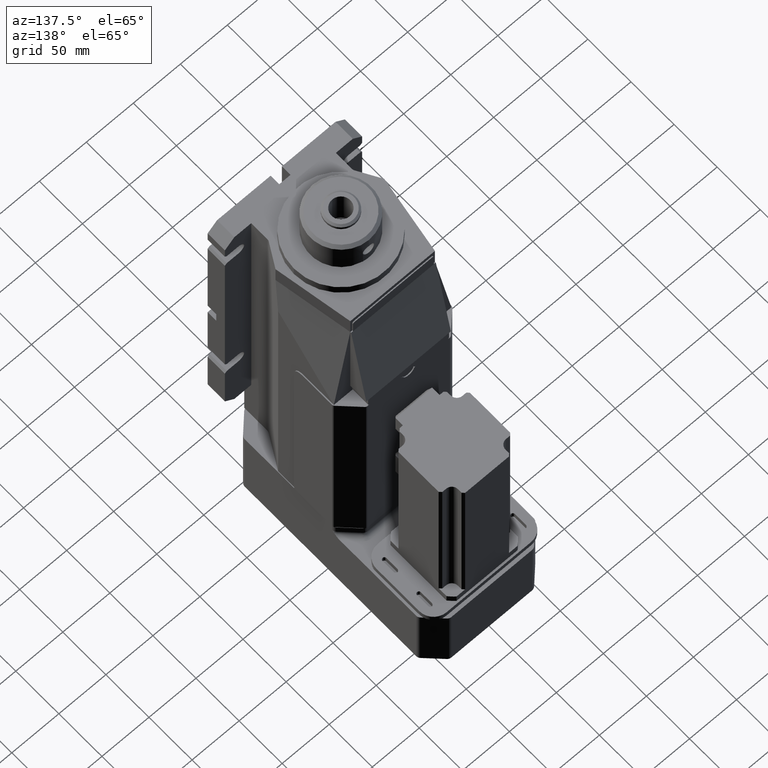
[diagram: clean part render]
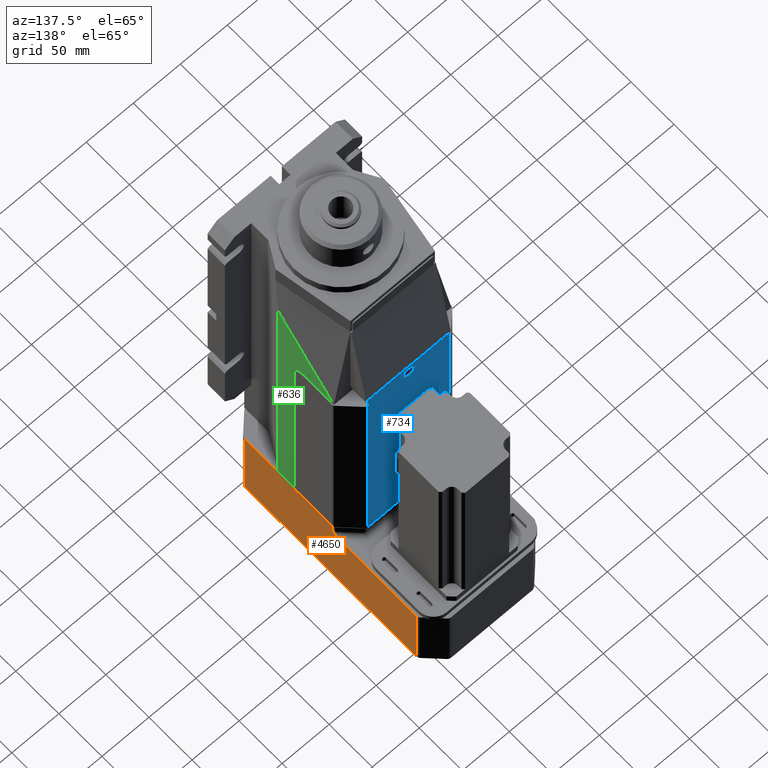
[diagram: same view with three faces highlighted in distinct colors, each labeled with its STEP entity id]
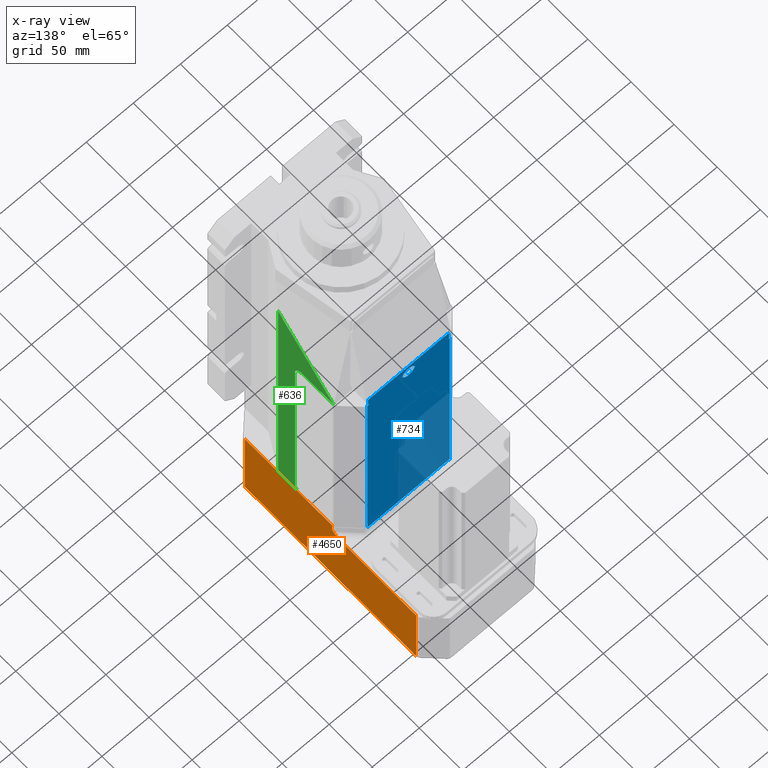
[diagram: x-ray of the same camera — body ghosted, the three highlighted faces saturated]
A machine part, auxiliary view with three faces highlighted in distinct colors.
The next image is the same camera in x-ray (body ghosted, the three faces saturated) — at least one of them is partly hidden behind the body in this view.
Their STEP definitions:

[orange] entity #4650 — the highlighted planar face has unit normal (1, 0, 0).
#1224 = VERTEX_POINT ( 'NONE', #8381 ) ;
#1226 = EDGE_CURVE ( 'NONE', #1227, #1224, #8380, .T. ) ;
#1227 = VERTEX_POINT ( 'NONE', #8376 ) ;
#4376 = VERTEX_POINT ( 'NONE', #8450 ) ;
#4378 = EDGE_CURVE ( 'NONE', #1224, #4376, #8448, .T. ) ;
#4431 = EDGE_CURVE ( 'NONE', #4376, #4432, #8579, .T. ) ;
#4432 = VERTEX_POINT ( 'NONE', #8580 ) ;
#4441 = VERTEX_POINT ( 'NONE', #8602 ) ;
#4477 = EDGE_CURVE ( 'NONE', #4441, #4498, #8629, .T. ) ;
#4498 = VERTEX_POINT ( 'NONE', #8671 ) ;
#4509 = EDGE_CURVE ( 'NONE', #4432, #4441, #8670, .T. ) ;
#4533 = EDGE_CURVE ( 'NONE', #4534, #1227, #8703, .T. ) ;
#4534 = VERTEX_POINT ( 'NONE', #8699 ) ;
#4645 = VERTEX_POINT ( 'NONE', #8892 ) ;
#4647 = EDGE_CURVE ( 'NONE', #4498, #4645, #8891, .T. ) ;
#4650 = ADVANCED_FACE ( 'NONE', ( #8887 ), #8886, .T. ) ;
#4651 = EDGE_LOOP ( 'NONE', ( #4652, #4654, #4655, #4718, #4719, #4720, #4721, #4722 ) ) ;
#4652 = ORIENTED_EDGE ( 'NONE', *, *, #4653, .T. ) ;
#4653 = EDGE_CURVE ( 'NONE', #4645, #4534, #8881, .T. ) ;
#4654 = ORIENTED_EDGE ( 'NONE', *, *, #4533, .T. ) ;
#4655 = ORIENTED_EDGE ( 'NONE', *, *, #1226, .T. ) ;
#4718 = ORIENTED_EDGE ( 'NONE', *, *, #4378, .T. ) ;
#4719 = ORIENTED_EDGE ( 'NONE', *, *, #4431, .T. ) ;
#4720 = ORIENTED_EDGE ( 'NONE', *, *, #4509, .T. ) ;
#4721 = ORIENTED_EDGE ( 'NONE', *, *, #4477, .T. ) ;
#4722 = ORIENTED_EDGE ( 'NONE', *, *, #4647, .T. ) ;
#8376 = CARTESIAN_POINT ( 'NONE',  ( 62.49999999999999300, 155.4289321881344700, -12.99999999999999800 ) ) ;
#8377 = DIRECTION ( 'NONE',  ( 8.746504920891465300E-017, -1.000000000000000000, 0.0000000000000000000 ) ) ;
#8378 = VECTOR ( 'NONE', #8377, 1000.000000000000000 ) ;
#8379 = CARTESIAN_POINT ( 'NONE',  ( 62.49999999999999300, 175.0000000000000300, -12.99999999999999800 ) ) ;
#8380 = LINE ( 'NONE', #8379, #8378 ) ;
#8381 = CARTESIAN_POINT ( 'NONE',  ( 62.50000000000000000, 67.07106781186531900, -13.00000000000000500 ) ) ;
#8444 = CARTESIAN_POINT ( 'NONE',  ( 62.50000000000000000, 62.92893218813431800, -12.05232726187179000 ) ) ;
#8445 = CARTESIAN_POINT ( 'NONE',  ( 62.49999999999999300, 64.14441957381804100, -12.67353987317883400 ) ) ;
#8446 = CARTESIAN_POINT ( 'NONE',  ( 62.49999999999999300, 65.57132790053066200, -13.00000000000000400 ) ) ;
#8447 = CARTESIAN_POINT ( 'NONE',  ( 62.50000000000000000, 67.07106781186531900, -13.00000000000000500 ) ) ;
#8448 =( BOUNDED_CURVE ( )  B_SPLINE_CURVE ( 3, ( #8447, #8446, #8445, #8444 ),
 .UNSPECIFIED., .F., .T. ) 
 B_SPLINE_CURVE_WITH_KNOTS ( ( 4, 4 ),
 ( 4.712388980384691500, 5.338239051312141800 ),
 .UNSPECIFIED. ) 
 CURVE ( )  GEOMETRIC_REPRESENTATION_ITEM ( )  RATIONAL_B_SPLINE_CURVE ( ( 1.000000000000000000, 0.9676247932184487400, 0.9676247932184487400, 1.000000000000000000 ) ) 
 REPRESENTATION_ITEM ( '' )  );
#8450 = CARTESIAN_POINT ( 'NONE',  ( 62.50000000000000000, 62.92893218813431800, -12.05232726187179000 ) ) ;
#8544 = CARTESIAN_POINT ( 'NONE',  ( 62.50000000000000000, 59.09498801775136200, -9.150514197032404000 ) ) ;
#8545 = CARTESIAN_POINT ( 'NONE',  ( 62.50000000000000000, 59.10509869874265800, -9.160223764816841200 ) ) ;
#8546 = CARTESIAN_POINT ( 'NONE',  ( 62.50000000000000000, 59.12864682092456500, -9.182812551621998100 ) ) ;
#8547 = CARTESIAN_POINT ( 'NONE',  ( 62.50000000000000000, 59.17556919809690900, -9.227722639798480800 ) ) ;
#8548 = CARTESIAN_POINT ( 'NONE',  ( 62.50000000000000000, 59.26871848367561300, -9.316472874415900700 ) ) ;
#8549 = CARTESIAN_POINT ( 'NONE',  ( 62.50000000000000000, 59.45223517976902600, -9.489693576708321000 ) ) ;
#8550 = CARTESIAN_POINT ( 'NONE',  ( 62.50000000000001400, 59.80814107170024100, -9.819015913523964300 ) ) ;
#8551 = CARTESIAN_POINT ( 'NONE',  ( 62.49999999999998600, 60.09412755005998000, -10.07194522890429100 ) ) ;
#8552 = CARTESIAN_POINT ( 'NONE',  ( 62.50000000000001400, 60.28200021801713100, -10.23238343712384200 ) ) ;
#8553 = CARTESIAN_POINT ( 'NONE',  ( 62.50000000000000000, 60.28997934580023400, -10.23918960444464000 ) ) ;
#8554 = CARTESIAN_POINT ( 'NONE',  ( 62.49999999999998600, 60.30364112713729000, -10.25082522518896700 ) ) ;
#8555 = CARTESIAN_POINT ( 'NONE',  ( 62.50000000000001400, 60.32412334154668100, -10.26824634584354500 ) ) ;
#8556 = CARTESIAN_POINT ( 'NONE',  ( 62.50000000000000000, 60.37184197199454200, -10.30866945413752200 ) ) ;
#8557 = CARTESIAN_POINT ( 'NONE',  ( 62.49999999999998600, 60.46698642019463000, -10.38861097779197200 ) ) ;
#8558 = CARTESIAN_POINT ( 'NONE',  ( 62.50000000000000000, 60.65610406581257800, -10.54487525336682400 ) ) ;
#8559 = CARTESIAN_POINT ( 'NONE',  ( 62.50000000000000000, 61.02965435391886500, -10.84292871758036700 ) ) ;
#8560 = CARTESIAN_POINT ( 'NONE',  ( 62.50000000000000000, 61.34180888121645100, -11.07358868073000500 ) ) ;
#8561 = CARTESIAN_POINT ( 'NONE',  ( 62.50000000000000000, 61.55912571647120800, -11.22525489377459500 ) ) ;
#8562 = CARTESIAN_POINT ( 'NONE',  ( 62.50000000000000000, 61.57518662118999900, -11.23642189150623800 ) ) ;
#8563 = CARTESIAN_POINT ( 'NONE',  ( 62.50000000000000000, 61.60402895042135200, -11.25638319309201100 ) ) ;
#8564 = CARTESIAN_POINT ( 'NONE',  ( 62.50000000000001400, 61.64729052553067800, -11.28619790738102100 ) ) ;
#8565 = CARTESIAN_POINT ( 'NONE',  ( 62.50000000000000000, 61.74822076962185200, -11.35487490742770700 ) ) ;
#8566 = CARTESIAN_POINT ( 'NONE',  ( 62.50000000000000000, 61.95002753314869900, -11.48866624101052400 ) ) ;
#8567 = CARTESIAN_POINT ( 'NONE',  ( 62.50000000000000000, 62.35342616157998900, -11.74199824213396500 ) ) ;
#8568 = CARTESIAN_POINT ( 'NONE',  ( 62.50000000000001400, 62.69882801688280000, -11.93471024416739800 ) ) ;
#8569 = CARTESIAN_POINT ( 'NONE',  ( 62.50000000000000000, 62.92893218813431800, -12.05232726187179000 ) ) ;
#8579 = B_SPLINE_CURVE_WITH_KNOTS ( 'NONE', 3,
 ( #8569, #8568, #8567, #8566, #8565, #8564, #8563, #8562, #8561, #8560, #8559, #8558, #8557, #8556, #8555, #8554, #8553, #8552, #8551, #8550, #8549, #8548, #8547, #8546, #8545, #8544, #8614, #8613, #8612, #8611, #8610 ),
 .UNSPECIFIED., .F., .F.,
 ( 4, 1, 1, 1, 1, 2, 2, 1, 1, 1, 1, 1, 2, 2, 1, 1, 1, 1, 1, 1, 2, 2, 4 ),
 ( 0.0000000000000000000, 0.1249999999999733000, 0.1874999999999597300, 0.2187499999999542600, 0.2343749999999502300, 0.2421874999999484300, 0.2499999999999466500, 0.3749999999999303300, 0.4374999999999219000, 0.4687499999999177300, 0.4843749999999156200, 0.4921874999999145700, 0.4960937499999140700, 0.4999999999999135100, 0.6249999999999102900, 0.6874999999999087400, 0.7187499999999079600, 0.7343749999999073000, 0.7421874999999061900, 0.7460937499999056300, 0.7480468749999055200, 0.7499999999999054100, 1.000000000000000000 ),
 .UNSPECIFIED. ) ;
#8580 = CARTESIAN_POINT ( 'NONE',  ( 62.50000000000000000, 57.92893218813436800, -8.000000000000007100 ) ) ;
#8602 = CARTESIAN_POINT ( 'NONE',  ( 62.50000000000000000, 57.92893218813436800, 0.0000000000000000000 ) ) ;
#8610 = CARTESIAN_POINT ( 'NONE',  ( 62.50000000000000000, 57.92893218813436800, -8.000000000000007100 ) ) ;
#8611 = CARTESIAN_POINT ( 'NONE',  ( 62.50000000000000000, 58.43805978262820800, -8.509127084276581600 ) ) ;
#8612 = CARTESIAN_POINT ( 'NONE',  ( 62.50000000000000000, 58.82224659352682000, -8.888309023010027200 ) ) ;
#8613 = CARTESIAN_POINT ( 'NONE',  ( 62.50000000000001400, 59.08351798041859800, -9.139492978647142600 ) ) ;
#8614 = CARTESIAN_POINT ( 'NONE',  ( 62.50000000000001400, 59.08824342406209200, -9.144034783141979300 ) ) ;
#8626 = DIRECTION ( 'NONE',  ( 8.746504920891465300E-017, -1.000000000000000000, 0.0000000000000000000 ) ) ;
#8627 = VECTOR ( 'NONE', #8626, 1000.000000000000000 ) ;
#8628 = CARTESIAN_POINT ( 'NONE',  ( 62.49999999999999300, 175.0000000000000300, 0.0000000000000000000 ) ) ;
#8629 = LINE ( 'NONE', #8628, #8627 ) ;
#8667 = DIRECTION ( 'NONE',  ( 0.0000000000000000000, 0.0000000000000000000, 1.000000000000000000 ) ) ;
#8668 = VECTOR ( 'NONE', #8667, 1000.000000000000000 ) ;
#8669 = CARTESIAN_POINT ( 'NONE',  ( 62.50000000000000000, 57.92893218813436800, -88.00000000000000000 ) ) ;
#8670 = LINE ( 'NONE', #8669, #8668 ) ;
#8671 = CARTESIAN_POINT ( 'NONE',  ( 62.50000000000001400, -43.42893218813440400, 0.0000000000000000000 ) ) ;
#8699 = CARTESIAN_POINT ( 'NONE',  ( 62.50000000000000000, 155.4289321881344700, -88.00000000000000000 ) ) ;
#8700 = DIRECTION ( 'NONE',  ( 0.0000000000000000000, 0.0000000000000000000, 1.000000000000000000 ) ) ;
#8701 = VECTOR ( 'NONE', #8700, 1000.000000000000000 ) ;
#8702 = CARTESIAN_POINT ( 'NONE',  ( 62.49999999999999300, 155.4289321881344700, -88.00000000000000000 ) ) ;
#8703 = LINE ( 'NONE', #8702, #8701 ) ;
#8878 = DIRECTION ( 'NONE',  ( 0.0000000000000000000, 1.000000000000000000, 0.0000000000000000000 ) ) ;
#8879 = VECTOR ( 'NONE', #8878, 1000.000000000000000 ) ;
#8880 = CARTESIAN_POINT ( 'NONE',  ( 62.50000000000001400, -63.00000000000000000, -88.00000000000000000 ) ) ;
#8881 = LINE ( 'NONE', #8880, #8879 ) ;
#8882 = DIRECTION ( 'NONE',  ( -8.746504920891465300E-017, 1.000000000000000000, 0.0000000000000000000 ) ) ;
#8883 = DIRECTION ( 'NONE',  ( 1.000000000000000000, 8.746504920891465300E-017, 0.0000000000000000000 ) ) ;
#8884 = CARTESIAN_POINT ( 'NONE',  ( 62.49999999999999300, 175.0000000000000300, -88.00000000000000000 ) ) ;
#8885 = AXIS2_PLACEMENT_3D ( 'NONE', #8884, #8883, #8882 ) ;
#8886 = PLANE ( 'NONE',  #8885 ) ;
#8887 = FACE_OUTER_BOUND ( 'NONE', #4651, .T. ) ;
#8888 = DIRECTION ( 'NONE',  ( 0.0000000000000000000, 0.0000000000000000000, -1.000000000000000000 ) ) ;
#8889 = VECTOR ( 'NONE', #8888, 1000.000000000000000 ) ;
#8890 = CARTESIAN_POINT ( 'NONE',  ( 62.50000000000001400, -43.42893218813440400, -88.00000000000000000 ) ) ;
#8891 = LINE ( 'NONE', #8890, #8889 ) ;
#8892 = CARTESIAN_POINT ( 'NONE',  ( 62.50000000000001400, -43.42893218813440400, -88.00000000000000000 ) ) ;

[blue] entity #734 — the highlighted planar face has unit normal (0, 1, 0).
#365 = VERTEX_POINT ( 'NONE', #6953 ) ;
#404 = EDGE_CURVE ( 'NONE', #421, #405, #6959, .T. ) ;
#405 = VERTEX_POINT ( 'NONE', #7014 ) ;
#411 = EDGE_CURVE ( 'NONE', #4886, #412, #7007, .T. ) ;
#412 = VERTEX_POINT ( 'NONE', #7002 ) ;
#421 = VERTEX_POINT ( 'NONE', #7052 ) ;
#449 = VERTEX_POINT ( 'NONE', #6798 ) ;
#451 = EDGE_CURVE ( 'NONE', #4970, #449, #6797, .T. ) ;
#455 = EDGE_CURVE ( 'NONE', #449, #456, #7083, .T. ) ;
#456 = VERTEX_POINT ( 'NONE', #7078 ) ;
#467 = EDGE_CURVE ( 'NONE', #405, #4973, #7071, .T. ) ;
#475 = EDGE_CURVE ( 'NONE', #476, #421, #7060, .T. ) ;
#476 = VERTEX_POINT ( 'NONE', #7114 ) ;
#489 = EDGE_CURVE ( 'NONE', #412, #514, #7089, .T. ) ;
#514 = VERTEX_POINT ( 'NONE', #7166 ) ;
#518 = EDGE_CURVE ( 'NONE', #456, #476, #7154, .T. ) ;
#727 = ORIENTED_EDGE ( 'NONE', *, *, #4865, .T. ) ;
#728 = ORIENTED_EDGE ( 'NONE', *, *, #4820, .T. ) ;
#729 = ORIENTED_EDGE ( 'NONE', *, *, #4830, .T. ) ;
#730 = ORIENTED_EDGE ( 'NONE', *, *, #4842, .T. ) ;
#731 = ORIENTED_EDGE ( 'NONE', *, *, #411, .T. ) ;
#734 = ADVANCED_FACE ( 'NONE', ( #7526, #7525 ), #7524, .T. ) ;
#735 = EDGE_LOOP ( 'NONE', ( #736, #737, #738, #739, #740, #741, #742 ) ) ;
#736 = ORIENTED_EDGE ( 'NONE', *, *, #455, .T. ) ;
#737 = ORIENTED_EDGE ( 'NONE', *, *, #518, .T. ) ;
#738 = ORIENTED_EDGE ( 'NONE', *, *, #475, .T. ) ;
#739 = ORIENTED_EDGE ( 'NONE', *, *, #404, .T. ) ;
#740 = ORIENTED_EDGE ( 'NONE', *, *, #467, .T. ) ;
#741 = ORIENTED_EDGE ( 'NONE', *, *, #4972, .T. ) ;
#742 = ORIENTED_EDGE ( 'NONE', *, *, #451, .T. ) ;
#743 = EDGE_LOOP ( 'NONE', ( #803, #806, #807, #727, #728, #729, #730, #731, #789, #790 ) ) ;
#754 = EDGE_CURVE ( 'NONE', #755, #4879, #7508, .T. ) ;
#755 = VERTEX_POINT ( 'NONE', #7500 ) ;
#789 = ORIENTED_EDGE ( 'NONE', *, *, #489, .T. ) ;
#790 = ORIENTED_EDGE ( 'NONE', *, *, #791, .F. ) ;
#791 = EDGE_CURVE ( 'NONE', #805, #514, #7576, .T. ) ;
#803 = ORIENTED_EDGE ( 'NONE', *, *, #804, .F. ) ;
#804 = EDGE_CURVE ( 'NONE', #755, #805, #7616, .T. ) ;
#805 = VERTEX_POINT ( 'NONE', #7612 ) ;
#806 = ORIENTED_EDGE ( 'NONE', *, *, #754, .T. ) ;
#807 = ORIENTED_EDGE ( 'NONE', *, *, #4878, .T. ) ;
#1095 = VERTEX_POINT ( 'NONE', #8088 ) ;
#1300 = DIRECTION ( 'NONE',  ( 1.000000000000000000, 0.0000000000000000000, 0.0000000000000000000 ) ) ;
#1301 = VECTOR ( 'NONE', #1300, 1000.000000000000000 ) ;
#1302 = CARTESIAN_POINT ( 'NONE',  ( -63.50000000000000000, 78.50000000000001400, 237.0000000000000600 ) ) ;
#1303 = LINE ( 'NONE', #1302, #1301 ) ;
#1315 = DIRECTION ( 'NONE',  ( 0.0000000000000000000, 0.0000000000000000000, 1.000000000000000000 ) ) ;
#1316 = VECTOR ( 'NONE', #1315, 1000.000000000000000 ) ;
#1317 = CARTESIAN_POINT ( 'NONE',  ( -43.00000000000005000, 78.50000000000001400, 2.000000000000000000 ) ) ;
#1318 = LINE ( 'NONE', #1317, #1316 ) ;
#1350 = DIRECTION ( 'NONE',  ( 0.0000000000000000000, 0.0000000000000000000, -1.000000000000000000 ) ) ;
#1351 = VECTOR ( 'NONE', #1350, 1000.000000000000000 ) ;
#1352 = CARTESIAN_POINT ( 'NONE',  ( 42.99999999999991500, 78.50000000000001400, 2.000000000000000000 ) ) ;
#1353 = LINE ( 'NONE', #1352, #1351 ) ;
#1360 = CARTESIAN_POINT ( 'NONE',  ( -43.00000000000005000, 78.50000000000001400, 229.0000000000000000 ) ) ;
#1361 = DIRECTION ( 'NONE',  ( 0.0000000000000000000, 0.0000000000000000000, -1.000000000000000000 ) ) ;
#1362 = DIRECTION ( 'NONE',  ( 0.0000000000000000000, 1.000000000000000000, 0.0000000000000000000 ) ) ;
#1363 = AXIS2_PLACEMENT_3D ( 'NONE', #1370, #1362, #1361 ) ;
#1364 = CIRCLE ( 'NONE', #1363, 2.000000000000001800 ) ;
#1370 = CARTESIAN_POINT ( 'NONE',  ( -41.00000000000005000, 78.50000000000001400, 229.0000000000000000 ) ) ;
#1402 = CARTESIAN_POINT ( 'NONE',  ( 42.99999999999992900, 78.50000000000001400, 229.0000000000000000 ) ) ;
#1409 = CARTESIAN_POINT ( 'NONE',  ( -41.00000000000005000, 78.50000000000001400, 227.0000000000000000 ) ) ;
#1410 = CARTESIAN_POINT ( 'NONE',  ( -43.75735931288068800, 78.50000000000001400, 227.0000000000000000 ) ) ;
#1411 = DIRECTION ( 'NONE',  ( 1.000000000000000000, 0.0000000000000000000, 0.0000000000000000000 ) ) ;
#1412 = VECTOR ( 'NONE', #1411, 1000.000000000000000 ) ;
#1413 = CARTESIAN_POINT ( 'NONE',  ( -63.50000000000000000, 78.50000000000001400, 227.0000000000000000 ) ) ;
#1419 = LINE ( 'NONE', #1413, #1412 ) ;
#1560 = CARTESIAN_POINT ( 'NONE',  ( 5.809475019311075400, 78.50000000000001400, 228.5000000000000000 ) ) ;
#1561 = DIRECTION ( 'NONE',  ( 8.881784197001252300E-016, 0.0000000000000000000, 1.000000000000000000 ) ) ;
#1562 = DIRECTION ( 'NONE',  ( 0.0000000000000000000, -1.000000000000000000, 0.0000000000000000000 ) ) ;
#1563 = CARTESIAN_POINT ( 'NONE',  ( -5.551115123125782700E-014, 78.50000000000001400, 227.0000000000000000 ) ) ;
#1564 = AXIS2_PLACEMENT_3D ( 'NONE', #1563, #1562, #1561 ) ;
#1565 = CIRCLE ( 'NONE', #1564, 6.000000000000005300 ) ;
#1566 = CARTESIAN_POINT ( 'NONE',  ( -5.551115123125782700E-014, 78.50000000000001400, 233.0000000000000000 ) ) ;
#4820 = EDGE_CURVE ( 'NONE', #4866, #365, #1318, .T. ) ;
#4830 = EDGE_CURVE ( 'NONE', #365, #1095, #1303, .T. ) ;
#4842 = EDGE_CURVE ( 'NONE', #1095, #4886, #1353, .T. ) ;
#4865 = EDGE_CURVE ( 'NONE', #4880, #4866, #1364, .T. ) ;
#4866 = VERTEX_POINT ( 'NONE', #1360 ) ;
#4878 = EDGE_CURVE ( 'NONE', #4879, #4880, #1419, .T. ) ;
#4879 = VERTEX_POINT ( 'NONE', #1410 ) ;
#4880 = VERTEX_POINT ( 'NONE', #1409 ) ;
#4886 = VERTEX_POINT ( 'NONE', #1402 ) ;
#4970 = VERTEX_POINT ( 'NONE', #1566 ) ;
#4972 = EDGE_CURVE ( 'NONE', #4973, #4970, #1565, .T. ) ;
#4973 = VERTEX_POINT ( 'NONE', #1560 ) ;
#6789 = DIRECTION ( 'NONE',  ( 0.0000000000000000000, 0.0000000000000000000, 1.000000000000000000 ) ) ;
#6790 = DIRECTION ( 'NONE',  ( 0.0000000000000000000, -1.000000000000000000, 0.0000000000000000000 ) ) ;
#6791 = CARTESIAN_POINT ( 'NONE',  ( -5.551115123125782700E-014, 78.50000000000001400, 227.0000000000000000 ) ) ;
#6792 = AXIS2_PLACEMENT_3D ( 'NONE', #6791, #6790, #6789 ) ;
#6797 = CIRCLE ( 'NONE', #6792, 6.000000000000005300 ) ;
#6798 = CARTESIAN_POINT ( 'NONE',  ( -5.809475019311186400, 78.50000000000001400, 228.5000000000000000 ) ) ;
#6953 = CARTESIAN_POINT ( 'NONE',  ( -43.00000000000005000, 78.50000000000001400, 237.0000000000000600 ) ) ;
#6959 = CIRCLE ( 'NONE', #7018, 2.000000000000001800 ) ;
#7002 = CARTESIAN_POINT ( 'NONE',  ( 40.99999999999993600, 78.50000000000001400, 227.0000000000000000 ) ) ;
#7003 = DIRECTION ( 'NONE',  ( 0.0000000000000000000, 0.0000000000000000000, -1.000000000000000000 ) ) ;
#7004 = DIRECTION ( 'NONE',  ( 0.0000000000000000000, 1.000000000000000000, 0.0000000000000000000 ) ) ;
#7005 = CARTESIAN_POINT ( 'NONE',  ( 40.99999999999993600, 78.50000000000001400, 229.0000000000000000 ) ) ;
#7006 = AXIS2_PLACEMENT_3D ( 'NONE', #7005, #7004, #7003 ) ;
#7007 = CIRCLE ( 'NONE', #7006, 2.000000000000001800 ) ;
#7014 = CARTESIAN_POINT ( 'NONE',  ( 7.745966692414785200, 78.50000000000001400, 227.0000000000000000 ) ) ;
#7015 = DIRECTION ( 'NONE',  ( 0.0000000000000000000, 0.0000000000000000000, 1.000000000000000000 ) ) ;
#7016 = DIRECTION ( 'NONE',  ( 0.0000000000000000000, 1.000000000000000000, 0.0000000000000000000 ) ) ;
#7017 = CARTESIAN_POINT ( 'NONE',  ( 7.745966692414785200, 78.50000000000001400, 225.0000000000000000 ) ) ;
#7018 = AXIS2_PLACEMENT_3D ( 'NONE', #7017, #7016, #7015 ) ;
#7052 = CARTESIAN_POINT ( 'NONE',  ( 5.809475019311075400, 78.50000000000001400, 225.5000000000000000 ) ) ;
#7053 = DIRECTION ( 'NONE',  ( 0.0000000000000000000, -1.000000000000000000, 0.0000000000000000000 ) ) ;
#7054 = CARTESIAN_POINT ( 'NONE',  ( -5.551115123125782700E-014, 78.50000000000001400, 227.0000000000000000 ) ) ;
#7055 = AXIS2_PLACEMENT_3D ( 'NONE', #7054, #7053, #7115 ) ;
#7060 = CIRCLE ( 'NONE', #7055, 6.000000000000005300 ) ;
#7063 = DIRECTION ( 'NONE',  ( 0.0000000000000000000, 0.0000000000000000000, 1.000000000000000000 ) ) ;
#7064 = DIRECTION ( 'NONE',  ( 0.0000000000000000000, 1.000000000000000000, 0.0000000000000000000 ) ) ;
#7065 = CARTESIAN_POINT ( 'NONE',  ( 7.745966692414785200, 78.50000000000001400, 229.0000000000000000 ) ) ;
#7066 = AXIS2_PLACEMENT_3D ( 'NONE', #7065, #7064, #7063 ) ;
#7071 = CIRCLE ( 'NONE', #7066, 2.000000000000001800 ) ;
#7078 = CARTESIAN_POINT ( 'NONE',  ( -7.745966692414896200, 78.50000000000001400, 227.0000000000000000 ) ) ;
#7079 = DIRECTION ( 'NONE',  ( 0.0000000000000000000, 0.0000000000000000000, 1.000000000000000000 ) ) ;
#7080 = DIRECTION ( 'NONE',  ( 0.0000000000000000000, 1.000000000000000000, 0.0000000000000000000 ) ) ;
#7081 = CARTESIAN_POINT ( 'NONE',  ( -7.745966692414896200, 78.50000000000001400, 229.0000000000000000 ) ) ;
#7082 = AXIS2_PLACEMENT_3D ( 'NONE', #7081, #7080, #7079 ) ;
#7083 = CIRCLE ( 'NONE', #7082, 2.000000000000001800 ) ;
#7086 = DIRECTION ( 'NONE',  ( 1.000000000000000000, 0.0000000000000000000, 0.0000000000000000000 ) ) ;
#7087 = VECTOR ( 'NONE', #7086, 1000.000000000000000 ) ;
#7088 = CARTESIAN_POINT ( 'NONE',  ( -63.50000000000000000, 78.50000000000001400, 227.0000000000000000 ) ) ;
#7089 = LINE ( 'NONE', #7088, #7087 ) ;
#7114 = CARTESIAN_POINT ( 'NONE',  ( -5.809475019311186400, 78.50000000000001400, 225.5000000000000000 ) ) ;
#7115 = DIRECTION ( 'NONE',  ( 0.0000000000000000000, 0.0000000000000000000, 1.000000000000000000 ) ) ;
#7151 = DIRECTION ( 'NONE',  ( 0.0000000000000000000, 0.0000000000000000000, 1.000000000000000000 ) ) ;
#7152 = DIRECTION ( 'NONE',  ( 0.0000000000000000000, 1.000000000000000000, 0.0000000000000000000 ) ) ;
#7153 = AXIS2_PLACEMENT_3D ( 'NONE', #7159, #7152, #7151 ) ;
#7154 = CIRCLE ( 'NONE', #7153, 2.000000000000001800 ) ;
#7159 = CARTESIAN_POINT ( 'NONE',  ( -7.745966692414896200, 78.50000000000001400, 225.0000000000000000 ) ) ;
#7166 = CARTESIAN_POINT ( 'NONE',  ( 43.75735931288058100, 78.50000000000001400, 227.0000000000000000 ) ) ;
#7500 = CARTESIAN_POINT ( 'NONE',  ( -43.75735931288068800, 78.50000000000001400, 2.000000000000000000 ) ) ;
#7501 = DIRECTION ( 'NONE',  ( 0.0000000000000000000, 0.0000000000000000000, 1.000000000000000000 ) ) ;
#7502 = VECTOR ( 'NONE', #7501, 1000.000000000000000 ) ;
#7503 = CARTESIAN_POINT ( 'NONE',  ( -43.75735931288068800, 78.50000000000001400, 2.000000000000000000 ) ) ;
#7508 = LINE ( 'NONE', #7503, #7502 ) ;
#7520 = DIRECTION ( 'NONE',  ( 0.0000000000000000000, 0.0000000000000000000, 1.000000000000000000 ) ) ;
#7521 = DIRECTION ( 'NONE',  ( 0.0000000000000000000, 1.000000000000000000, 0.0000000000000000000 ) ) ;
#7522 = CARTESIAN_POINT ( 'NONE',  ( -63.50000000000000000, 78.50000000000001400, 2.000000000000000000 ) ) ;
#7523 = AXIS2_PLACEMENT_3D ( 'NONE', #7522, #7521, #7520 ) ;
#7524 = PLANE ( 'NONE',  #7523 ) ;
#7525 = FACE_OUTER_BOUND ( 'NONE', #743, .T. ) ;
#7526 = FACE_BOUND ( 'NONE', #735, .T. ) ;
#7573 = DIRECTION ( 'NONE',  ( 0.0000000000000000000, 0.0000000000000000000, 1.000000000000000000 ) ) ;
#7574 = VECTOR ( 'NONE', #7573, 1000.000000000000000 ) ;
#7575 = CARTESIAN_POINT ( 'NONE',  ( 43.75735931288058800, 78.50000000000001400, 2.000000000000000000 ) ) ;
#7576 = LINE ( 'NONE', #7575, #7574 ) ;
#7612 = CARTESIAN_POINT ( 'NONE',  ( 43.75735931288058100, 78.50000000000001400, 2.000000000000000000 ) ) ;
#7613 = DIRECTION ( 'NONE',  ( 1.000000000000000000, 0.0000000000000000000, 0.0000000000000000000 ) ) ;
#7614 = VECTOR ( 'NONE', #7613, 1000.000000000000000 ) ;
#7615 = CARTESIAN_POINT ( 'NONE',  ( -63.50000000000000000, 78.50000000000001400, 2.000000000000000000 ) ) ;
#7616 = LINE ( 'NONE', #7615, #7614 ) ;
#8088 = CARTESIAN_POINT ( 'NONE',  ( 42.99999999999994300, 78.50000000000001400, 237.0000000000000600 ) ) ;

[green] entity #636 — the highlighted planar face has unit normal (1, 0, 0).
#445 = VERTEX_POINT ( 'NONE', #6803 ) ;
#480 = EDGE_CURVE ( 'NONE', #481, #498, #7109, .T. ) ;
#481 = VERTEX_POINT ( 'NONE', #7105 ) ;
#497 = EDGE_CURVE ( 'NONE', #498, #445, #7135, .T. ) ;
#498 = VERTEX_POINT ( 'NONE', #7130 ) ;
#501 = EDGE_CURVE ( 'NONE', #445, #1110, #7129, .T. ) ;
#548 = EDGE_CURVE ( 'NONE', #549, #481, #7239, .T. ) ;
#549 = VERTEX_POINT ( 'NONE', #7234 ) ;
#613 = ORIENTED_EDGE ( 'NONE', *, *, #4423, .T. ) ;
#614 = ORIENTED_EDGE ( 'NONE', *, *, #615, .F. ) ;
#615 = EDGE_CURVE ( 'NONE', #616, #4395, #7320, .T. ) ;
#616 = VERTEX_POINT ( 'NONE', #7311 ) ;
#617 = ORIENTED_EDGE ( 'NONE', *, *, #618, .F. ) ;
#618 = EDGE_CURVE ( 'NONE', #549, #616, #7310, .T. ) ;
#619 = ORIENTED_EDGE ( 'NONE', *, *, #548, .T. ) ;
#620 = ORIENTED_EDGE ( 'NONE', *, *, #480, .T. ) ;
#621 = ORIENTED_EDGE ( 'NONE', *, *, #497, .T. ) ;
#622 = ORIENTED_EDGE ( 'NONE', *, *, #501, .T. ) ;
#636 = ADVANCED_FACE ( 'NONE', ( #7345 ), #7344, .T. ) ;
#637 = EDGE_LOOP ( 'NONE', ( #613, #614, #617, #619, #620, #621, #622 ) ) ;
#1110 = VERTEX_POINT ( 'NONE', #8130 ) ;
#4395 = VERTEX_POINT ( 'NONE', #8481 ) ;
#4423 = EDGE_CURVE ( 'NONE', #1110, #4395, #8517, .T. ) ;
#6803 = CARTESIAN_POINT ( 'NONE',  ( 62.50000000000000000, 25.00000000000001400, 227.0000000000000000 ) ) ;
#7105 = CARTESIAN_POINT ( 'NONE',  ( 62.50000000000000000, 15.00000000000001400, 4.000000000000001800 ) ) ;
#7106 = DIRECTION ( 'NONE',  ( 0.0000000000000000000, 0.0000000000000000000, 1.000000000000000000 ) ) ;
#7107 = VECTOR ( 'NONE', #7106, 1000.000000000000000 ) ;
#7108 = CARTESIAN_POINT ( 'NONE',  ( 62.49999999999998600, 15.00000000000001400, 1.999000000000028500 ) ) ;
#7109 = LINE ( 'NONE', #7108, #7107 ) ;
#7126 = DIRECTION ( 'NONE',  ( 0.0000000000000000000, 1.000000000000000000, 0.0000000000000000000 ) ) ;
#7127 = VECTOR ( 'NONE', #7126, 1000.000000000000000 ) ;
#7128 = CARTESIAN_POINT ( 'NONE',  ( 62.49999999999998600, -4.699999999999995700, 227.0000000000000000 ) ) ;
#7129 = LINE ( 'NONE', #7128, #7127 ) ;
#7130 = CARTESIAN_POINT ( 'NONE',  ( 62.50000000000000000, 15.00000000000001400, 217.0000000000000000 ) ) ;
#7131 = DIRECTION ( 'NONE',  ( 0.0000000000000000000, 0.0000000000000000000, 1.000000000000000000 ) ) ;
#7132 = DIRECTION ( 'NONE',  ( -1.000000000000000000, 0.0000000000000000000, 0.0000000000000000000 ) ) ;
#7133 = CARTESIAN_POINT ( 'NONE',  ( 62.50000000000000000, 25.00000000000001400, 217.0000000000000000 ) ) ;
#7134 = AXIS2_PLACEMENT_3D ( 'NONE', #7133, #7132, #7131 ) ;
#7135 = CIRCLE ( 'NONE', #7134, 10.00000000000000900 ) ;
#7234 = CARTESIAN_POINT ( 'NONE',  ( 62.50000000000000000, 17.00000000000001400, 2.000000000000000900 ) ) ;
#7235 = DIRECTION ( 'NONE',  ( 0.0000000000000000000, 0.0000000000000000000, -1.000000000000000000 ) ) ;
#7236 = DIRECTION ( 'NONE',  ( -1.000000000000000000, 0.0000000000000000000, 0.0000000000000000000 ) ) ;
#7237 = CARTESIAN_POINT ( 'NONE',  ( 62.50000000000000000, 17.00000000000001400, 4.000000000000001800 ) ) ;
#7238 = AXIS2_PLACEMENT_3D ( 'NONE', #7237, #7236, #7235 ) ;
#7239 = CIRCLE ( 'NONE', #7238, 2.000000000000000000 ) ;
#7307 = DIRECTION ( 'NONE',  ( 0.0000000000000000000, -1.000000000000000000, 0.0000000000000000000 ) ) ;
#7308 = VECTOR ( 'NONE', #7307, 1000.000000000000000 ) ;
#7309 = CARTESIAN_POINT ( 'NONE',  ( 62.50000000000000000, 78.50000000000001400, 2.000000000000000000 ) ) ;
#7310 = LINE ( 'NONE', #7309, #7308 ) ;
#7311 = CARTESIAN_POINT ( 'NONE',  ( 62.50000000000000000, -4.700000000000002000, 2.000000000000000000 ) ) ;
#7312 = DIRECTION ( 'NONE',  ( 0.0000000000000000000, 0.0000000000000000000, 1.000000000000000000 ) ) ;
#7313 = VECTOR ( 'NONE', #7312, 1000.000000000000000 ) ;
#7314 = CARTESIAN_POINT ( 'NONE',  ( 62.49999999999998600, -4.699999999999988600, 1.999000000000028500 ) ) ;
#7320 = LINE ( 'NONE', #7314, #7313 ) ;
#7340 = DIRECTION ( 'NONE',  ( 0.0000000000000000000, 0.0000000000000000000, -1.000000000000000000 ) ) ;
#7341 = DIRECTION ( 'NONE',  ( 1.000000000000000000, 0.0000000000000000000, 0.0000000000000000000 ) ) ;
#7342 = CARTESIAN_POINT ( 'NONE',  ( 62.49999999999998600, -4.699999999999995700, 1.999000000000028500 ) ) ;
#7343 = AXIS2_PLACEMENT_3D ( 'NONE', #7342, #7341, #7340 ) ;
#7344 = PLANE ( 'NONE',  #7343 ) ;
#7345 = FACE_OUTER_BOUND ( 'NONE', #637, .T. ) ;
#8130 = CARTESIAN_POINT ( 'NONE',  ( 62.49999999999998600, 60.00000000000001400, 227.0000000000000000 ) ) ;
#8481 = CARTESIAN_POINT ( 'NONE',  ( 62.50000000000000000, -4.699999999999882900, 298.7096640972624200 ) ) ;
#8514 = DIRECTION ( 'NONE',  ( 0.0000000000000000000, -0.6698869134532987600, 0.7424631460106371200 ) ) ;
#8515 = VECTOR ( 'NONE', #8514, 1000.000000000000100 ) ;
#8516 = CARTESIAN_POINT ( 'NONE',  ( 62.49999999999998600, 60.00000000000001400, 227.0000000000000000 ) ) ;
#8517 = LINE ( 'NONE', #8516, #8515 ) ;